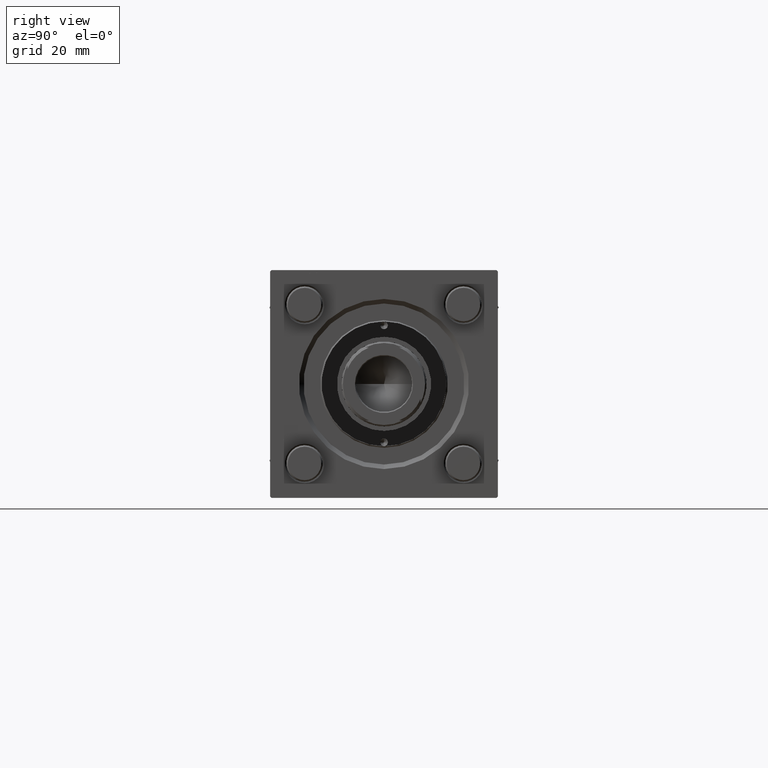
[diagram: clean part render]
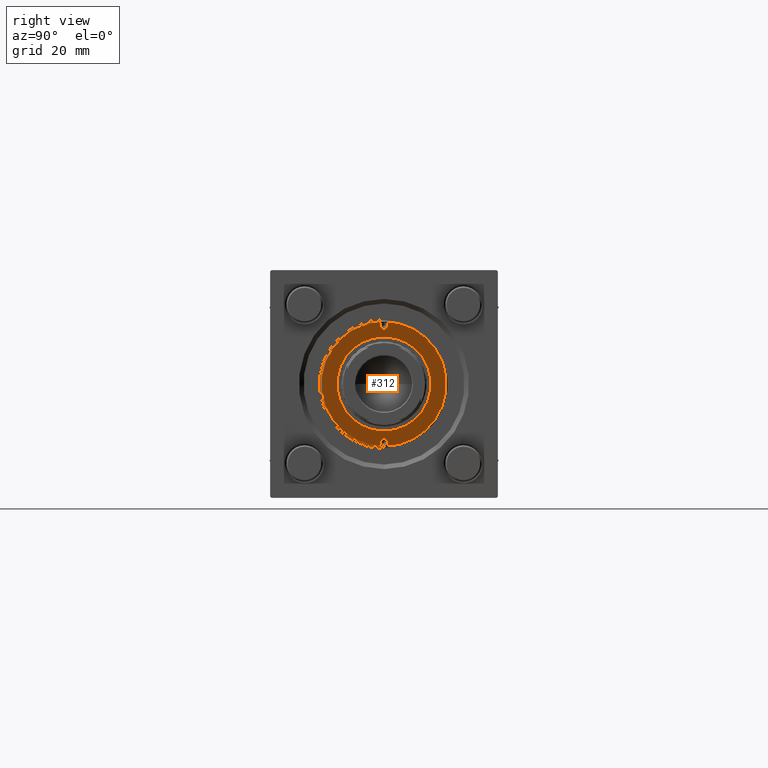
[diagram: same view with one face highlighted and labeled with its STEP entity id]
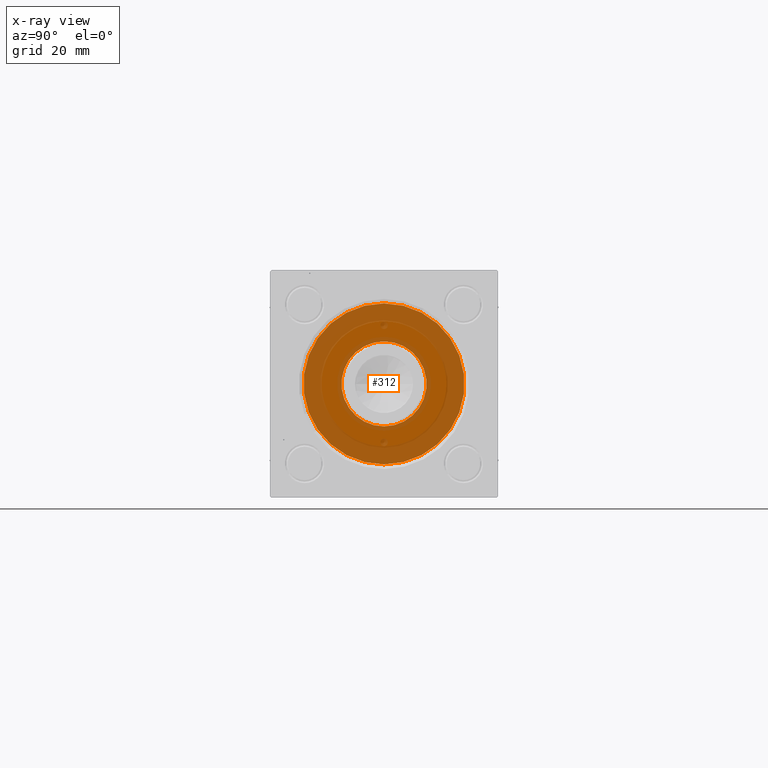
[diagram: x-ray of the same camera — body ghosted, the highlighted face saturated]
A machine part, right view. The second image highlights one B-rep face of the part: STEP entity #312.
The next image is the same camera in x-ray: the body ghosted, the highlighted face saturated — about 64% of this face is hidden behind the body in this view.
In plain terms, the highlighted planar face has unit normal (1, 0, 0).
Its self-contained STEP definition (entity closure, byte-faithful):
#312 = ADVANCED_FACE ( 'NONE', ( #19306, #46043 ), #49802, .F. ) ;
#320 = EDGE_LOOP ( 'NONE', ( #22996, #38678 ) ) ;
#2328 = DIRECTION ( 'NONE',  ( 0.000000000000000000, 0.000000000000000000, 1.000000000000000000 ) ) ;
#5623 = ORIENTED_EDGE ( 'NONE', *, *, #15113, .F. ) ;
#6193 = VERTEX_POINT ( 'NONE', #11484 ) ;
#7601 = VERTEX_POINT ( 'NONE', #19250 ) ;
#9084 = CIRCLE ( 'NONE', #11832, 14.00000000000000178 ) ;
#9160 = DIRECTION ( 'NONE',  ( 1.000000000000000000, 0.000000000000000000, 0.000000000000000000 ) ) ;
#10353 = VERTEX_POINT ( 'NONE', #26285 ) ;
#10675 = DIRECTION ( 'NONE',  ( 1.000000000000000000, 0.000000000000000000, -0.000000000000000000 ) ) ;
#11484 = CARTESIAN_POINT ( 'NONE',  ( 14.00000000000000178, 0.000000000000000000, 0.000000000000000000 ) ) ;
#11832 = AXIS2_PLACEMENT_3D ( 'NONE', #30892, #51633, #21425 ) ;
#14055 = EDGE_CURVE ( 'NONE', #34241, #6193, #9084, .T. ) ;
#14997 = CARTESIAN_POINT ( 'NONE',  ( 0.000000000000000000, 0.000000000000000000, 0.000000000000000000 ) ) ;
#15113 = EDGE_CURVE ( 'NONE', #10353, #7601, #15566, .T. ) ;
#15566 = CIRCLE ( 'NONE', #17420, 26.50000000000000355 ) ;
#17049 = DIRECTION ( 'NONE',  ( 1.000000000000000000, 0.000000000000000000, 0.000000000000000000 ) ) ;
#17420 = AXIS2_PLACEMENT_3D ( 'NONE', #38892, #56469, #17049 ) ;
#17872 = EDGE_CURVE ( 'NONE', #7601, #10353, #48707, .T. ) ;
#19193 = CARTESIAN_POINT ( 'NONE',  ( 0.000000000000000000, 0.000000000000000000, 0.000000000000000000 ) ) ;
#19250 = CARTESIAN_POINT ( 'NONE',  ( 26.50000000000000355, 3.245314017740486554E-15, 0.000000000000000000 ) ) ;
#19306 = FACE_BOUND ( 'NONE', #320, .T. ) ;
#21425 = DIRECTION ( 'NONE',  ( 1.000000000000000000, 0.000000000000000000, 0.000000000000000000 ) ) ;
#22996 = ORIENTED_EDGE ( 'NONE', *, *, #42698, .F. ) ;
#25340 = AXIS2_PLACEMENT_3D ( 'NONE', #14997, #2328, #10675 ) ;
#26285 = CARTESIAN_POINT ( 'NONE',  ( -26.50000000000000355, 0.000000000000000000, 0.000000000000000000 ) ) ;
#30892 = CARTESIAN_POINT ( 'NONE',  ( 0.000000000000000000, 0.000000000000000000, 0.000000000000000000 ) ) ;
#32758 = EDGE_LOOP ( 'NONE', ( #5623, #43015 ) ) ;
#34241 = VERTEX_POINT ( 'NONE', #43277 ) ;
#37471 = AXIS2_PLACEMENT_3D ( 'NONE', #19193, #45643, #41334 ) ;
#38678 = ORIENTED_EDGE ( 'NONE', *, *, #14055, .F. ) ;
#38892 = CARTESIAN_POINT ( 'NONE',  ( 0.000000000000000000, 0.000000000000000000, 0.000000000000000000 ) ) ;
#41334 = DIRECTION ( 'NONE',  ( 1.000000000000000000, 0.000000000000000000, 0.000000000000000000 ) ) ;
#42698 = EDGE_CURVE ( 'NONE', #6193, #34241, #53104, .T. ) ;
#43015 = ORIENTED_EDGE ( 'NONE', *, *, #17872, .F. ) ;
#43277 = CARTESIAN_POINT ( 'NONE',  ( -14.00000000000000178, 1.714505518806294835E-15, 0.000000000000000000 ) ) ;
#45643 = DIRECTION ( 'NONE',  ( -0.000000000000000000, -0.000000000000000000, -1.000000000000000000 ) ) ;
#46043 = FACE_OUTER_BOUND ( 'NONE', #32758, .T. ) ;
#48707 = CIRCLE ( 'NONE', #49645, 26.50000000000000355 ) ;
#48848 = DIRECTION ( 'NONE',  ( 0.000000000000000000, 0.000000000000000000, 1.000000000000000000 ) ) ;
#49645 = AXIS2_PLACEMENT_3D ( 'NONE', #54004, #48848, #9160 ) ;
#49802 = PLANE ( 'NONE',  #25340 ) ;
#51633 = DIRECTION ( 'NONE',  ( -0.000000000000000000, -0.000000000000000000, -1.000000000000000000 ) ) ;
#53104 = CIRCLE ( 'NONE', #37471, 14.00000000000000178 ) ;
#54004 = CARTESIAN_POINT ( 'NONE',  ( 0.000000000000000000, 0.000000000000000000, 0.000000000000000000 ) ) ;
#56469 = DIRECTION ( 'NONE',  ( 0.000000000000000000, 0.000000000000000000, 1.000000000000000000 ) ) ;